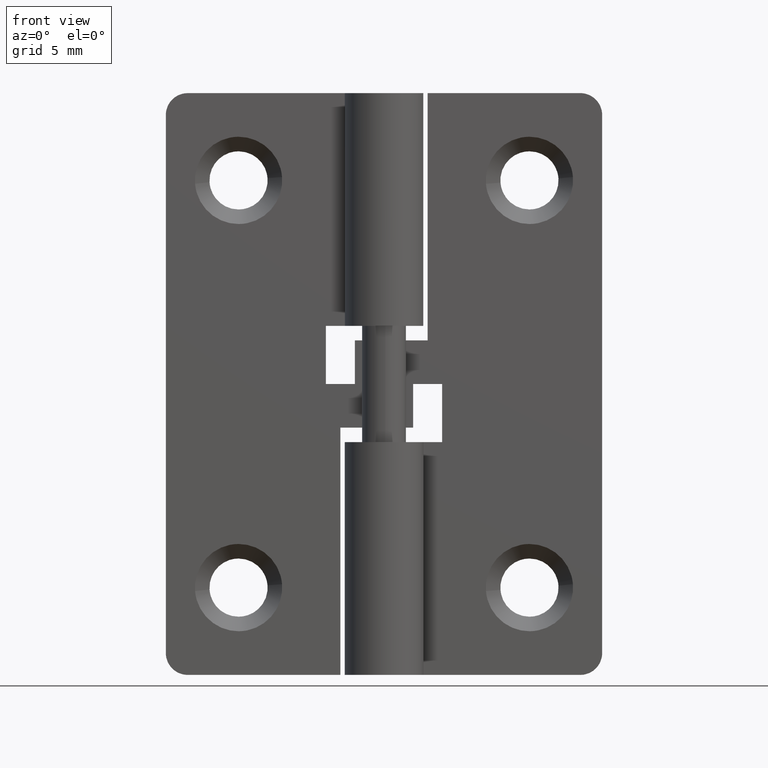
[diagram: clean part render]
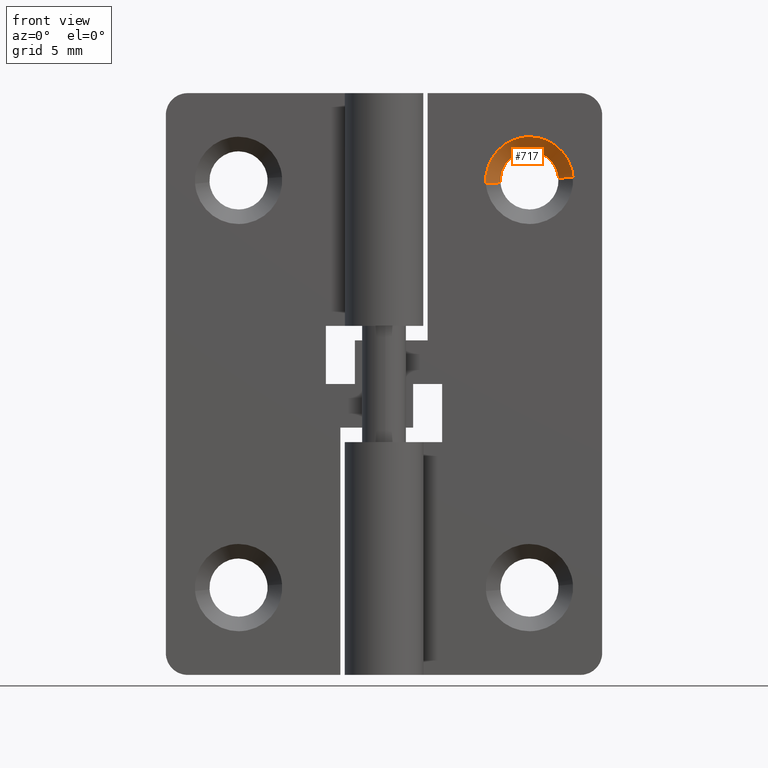
[diagram: same view with one face highlighted and labeled with its STEP entity id]
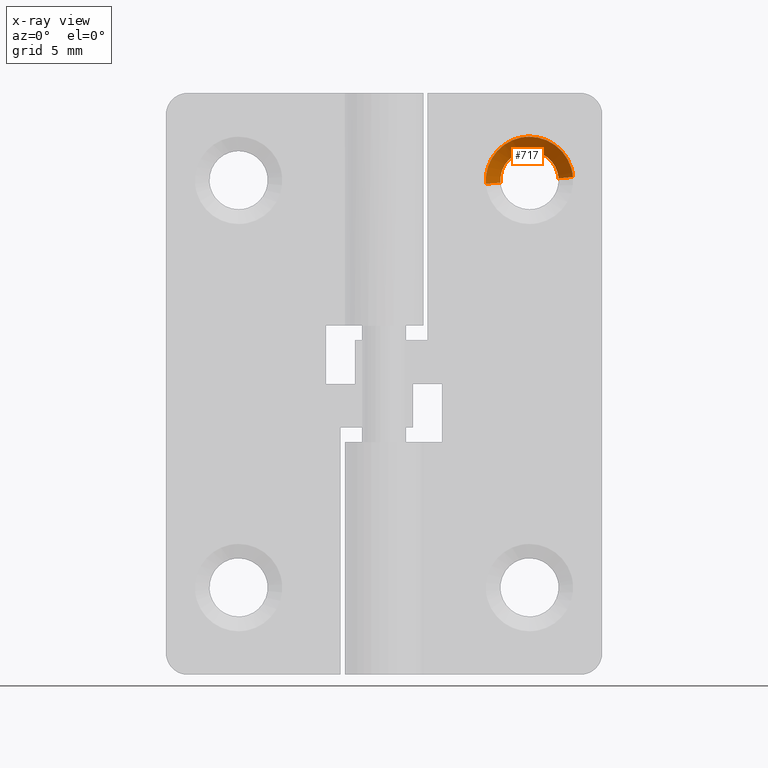
[diagram: x-ray of the same camera — body ghosted, the highlighted face saturated]
A machine part, front view. The second image highlights one B-rep face of the part: STEP entity #717.
The next image is the same camera in x-ray: the body ghosted, the highlighted face saturated — about 0% of this face is hidden behind the body in this view.
In plain terms, the highlighted face is a freeform B-spline surface patch.
Its self-contained STEP definition (entity closure, byte-faithful):
#459=CARTESIAN_POINT('',(8.013061613129381,2.500000000000000,34.228201329487760));
#460=VERTEX_POINT('',#459);
#461=CARTESIAN_POINT('',(10.0,2.500000000000000,36.000000000000007));
#462=VERTEX_POINT('',#461);
#463=CARTESIAN_POINT('',(8.013061613129381,2.500000000000000,34.228201329487760));
#464=CARTESIAN_POINT('',(8.216553988574882,2.500000000000000,36.000000000000007));
#465=CARTESIAN_POINT('',(10.0,2.500000000000000,36.000000000000007));
#473=(BOUNDED_CURVE()B_SPLINE_CURVE(2,(#463,#464,#465),.UNSPECIFIED.,.F.,.U.)B_SPLINE_CURVE_WITH_KNOTS((3,3),(0.769767755877807,1.0),.UNSPECIFIED.)CURVE()GEOMETRIC_REPRESENTATION_ITEM()RATIONAL_B_SPLINE_CURVE((0.957343736458300,0.730266147777626,1.0))REPRESENTATION_ITEM(''));
#474=EDGE_CURVE('',#460,#462,#473,.T.);
#513=CARTESIAN_POINT('',(11.995660864503790,2.499999999977800,34.130802357251383));
#514=VERTEX_POINT('',#513);
#520=CARTESIAN_POINT('',(10.0,2.500000000000000,36.000000000000007));
#521=CARTESIAN_POINT('',(11.873176075434181,2.499999999988900,35.999998132248500));
#522=CARTESIAN_POINT('',(11.995660864503792,2.499999999977800,34.130802357251383));
#530=(BOUNDED_CURVE()B_SPLINE_CURVE(2,(#520,#521,#522),.UNSPECIFIED.,.F.,.U.)B_SPLINE_CURVE_WITH_KNOTS((3,3),(0.0,0.238580719735808),.UNSPECIFIED.)CURVE()GEOMETRIC_REPRESENTATION_ITEM()RATIONAL_B_SPLINE_CURVE((1.0,0.720485300198996,0.974465146440086))REPRESENTATION_ITEM(''));
#531=EDGE_CURVE('',#462,#514,#530,.T.);
#562=CARTESIAN_POINT('',(8.006165332516021,2.499999999955600,33.843081808203621));
#563=VERTEX_POINT('',#562);
#564=CARTESIAN_POINT('',(8.006165332516021,2.499999999955600,33.843081808203628));
#565=CARTESIAN_POINT('',(8.0,2.500000000000000,33.921419785645888));
#566=CARTESIAN_POINT('',(8.0,2.500000000000000,34.0));
#567=CARTESIAN_POINT('',(8.0,2.500000000000000,34.114474470057687));
#568=CARTESIAN_POINT('',(8.013061613129381,2.500000000000000,34.228201329487767));
#576=(BOUNDED_CURVE()B_SPLINE_CURVE(2,(#564,#565,#566,#567,#568),.UNSPECIFIED.,.F.,.U.)B_SPLINE_CURVE_WITH_KNOTS((3,2,3),(0.736331300574783,0.750000000000000,0.769767755877807),.UNSPECIFIED.)CURVE()GEOMETRIC_REPRESENTATION_ITEM()RATIONAL_B_SPLINE_CURVE((0.969723356050807,0.983986122513418,1.0,0.976840633408922,0.957343736458301))REPRESENTATION_ITEM(''));
#577=EDGE_CURVE('',#563,#460,#576,.T.);
#646=CARTESIAN_POINT('',(11.973094392851445,2.525000000000001,34.101810995916438));
#647=CARTESIAN_POINT('',(11.971014820403912,2.525000000000001,34.128234469198503));
#648=CARTESIAN_POINT('',(11.813955020060430,2.525000000000000,36.123868448185426));
#649=CARTESIAN_POINT('',(9.845043285937505,2.525000000000000,35.968911734122933));
#650=CARTESIAN_POINT('',(7.876131551814580,2.525000000000000,35.813955020060433));
#651=CARTESIAN_POINT('',(8.032185816747857,2.525000000000000,33.831097579864966));
#652=CARTESIAN_POINT('',(8.033276946348543,2.525000000000001,33.817233463764936));
#653=CARTESIAN_POINT('',(13.022705682213243,1.474375000000000,34.155970579503631));
#654=CARTESIAN_POINT('',(13.019519856194728,1.474375000000000,34.196450337148697));
#655=CARTESIAN_POINT('',(12.778910206364731,1.474375000000000,37.253685809387854));
#656=CARTESIAN_POINT('',(9.762612198488437,1.474375000000000,37.016298007876287));
#657=CARTESIAN_POINT('',(6.746314190612143,1.474375000000000,36.778910206364735));
#658=CARTESIAN_POINT('',(6.985383398378598,1.474375000000000,33.741247906369090));
#659=CARTESIAN_POINT('',(6.987054967491549,1.474375000000000,33.720008606989268));
#667=(BOUNDED_SURFACE()B_SPLINE_SURFACE(2,1,((#646,#653),(#647,#654),(#648,#655),(#649,#656),(#650,#657),(#651,#658),(#652,#659)),.UNSPECIFIED.,.F.,.F.,.U.)B_SPLINE_SURFACE_WITH_KNOTS((3,1,2,1,3),(2,2),(0.0,0.096763033831060,5.109782672451455,10.122802311071849,10.173164511106840),(0.0,1.0),.UNSPECIFIED.)GEOMETRIC_REPRESENTATION_ITEM()RATIONAL_B_SPLINE_SURFACE(((1.011307051830634,1.011307051830634),(1.005653525915317,1.005653525915317),(0.707106781186548,0.707106781186548),(1.0,1.0),(0.707106781186548,0.707106781186548),(1.002942487350565,1.002942487350565),(1.005884974701130,1.005884974701130)))REPRESENTATION_ITEM('')SURFACE());
#668=ORIENTED_EDGE('',*,*,#531,.T.);
#669=CARTESIAN_POINT('',(12.990752001211590,1.499999999969401,34.235377287418430));
#670=VERTEX_POINT('',#669);
#671=CARTESIAN_POINT('',(11.995660864503790,2.499999999977800,34.130802357251383));
#672=CARTESIAN_POINT('',(12.990752001211590,1.499999999969401,34.235377287418430));
#673=QUASI_UNIFORM_CURVE('',1,(#671,#672),.UNSPECIFIED.,.F.,.U.);
#674=EDGE_CURVE('',#514,#670,#673,.T.);
#675=ORIENTED_EDGE('',*,*,#674,.T.);
#676=CARTESIAN_POINT('',(10.0,1.500000000000000,37.000000000000007));
#677=VERTEX_POINT('',#676);
#678=CARTESIAN_POINT('',(10.0,1.500000000000000,37.000000000000007));
#679=CARTESIAN_POINT('',(12.773171474542121,1.500000000000000,37.0));
#680=CARTESIAN_POINT('',(12.990752001211588,1.499999999969401,34.235377287418437));
#688=(BOUNDED_CURVE()B_SPLINE_CURVE(2,(#678,#679,#680),.UNSPECIFIED.,.F.,.U.)B_SPLINE_CURVE_WITH_KNOTS((3,3),(0.0,0.236331300606114),.UNSPECIFIED.)CURVE()GEOMETRIC_REPRESENTATION_ITEM()RATIONAL_B_SPLINE_CURVE((1.0,0.723120658636423,0.969723356116193))REPRESENTATION_ITEM(''));
#689=EDGE_CURVE('',#677,#670,#688,.T.);
#690=ORIENTED_EDGE('',*,*,#689,.F.);
#691=CARTESIAN_POINT('',(7.009247998788410,1.499999999969401,33.764622712581570));
#692=VERTEX_POINT('',#691);
#693=CARTESIAN_POINT('',(7.009247998788410,1.499999999969402,33.764622712581570));
#694=CARTESIAN_POINT('',(7.000000000000001,1.500000000000000,33.882129678743411));
#695=CARTESIAN_POINT('',(7.0,1.500000000000000,34.0));
#696=CARTESIAN_POINT('',(6.999999999999999,1.500000000000000,37.0));
#697=CARTESIAN_POINT('',(10.0,1.500000000000000,37.000000000000007));
#705=(BOUNDED_CURVE()B_SPLINE_CURVE(2,(#693,#694,#695,#696,#697),.UNSPECIFIED.,.F.,.U.)B_SPLINE_CURVE_WITH_KNOTS((3,2,3),(0.736331300606114,0.750000000000000,1.0),.UNSPECIFIED.)CURVE()GEOMETRIC_REPRESENTATION_ITEM()RATIONAL_B_SPLINE_CURVE((0.969723356116193,0.983986122550125,1.0,0.707106781186548,1.0))REPRESENTATION_ITEM(''));
#706=EDGE_CURVE('',#692,#677,#705,.T.);
#707=ORIENTED_EDGE('',*,*,#706,.F.);
#708=CARTESIAN_POINT('',(8.006165332516021,2.499999999955600,33.843081808203621));
#709=CARTESIAN_POINT('',(7.009247998788410,1.499999999969401,33.764622712581570));
#710=QUASI_UNIFORM_CURVE('',1,(#708,#709),.UNSPECIFIED.,.F.,.U.);
#711=EDGE_CURVE('',#563,#692,#710,.T.);
#712=ORIENTED_EDGE('',*,*,#711,.F.);
#713=ORIENTED_EDGE('',*,*,#577,.T.);
#714=ORIENTED_EDGE('',*,*,#474,.T.);
#715=EDGE_LOOP('',(#668,#675,#690,#707,#712,#713,#714));
#716=FACE_OUTER_BOUND('',#715,.T.);
#717=ADVANCED_FACE('',(#716),#667,.F.);